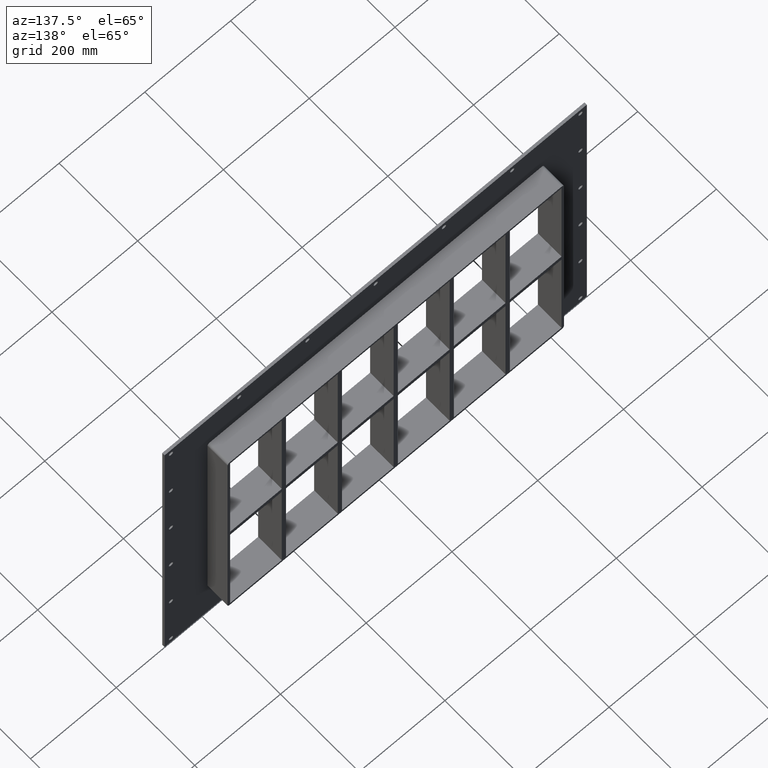
[diagram: clean part render]
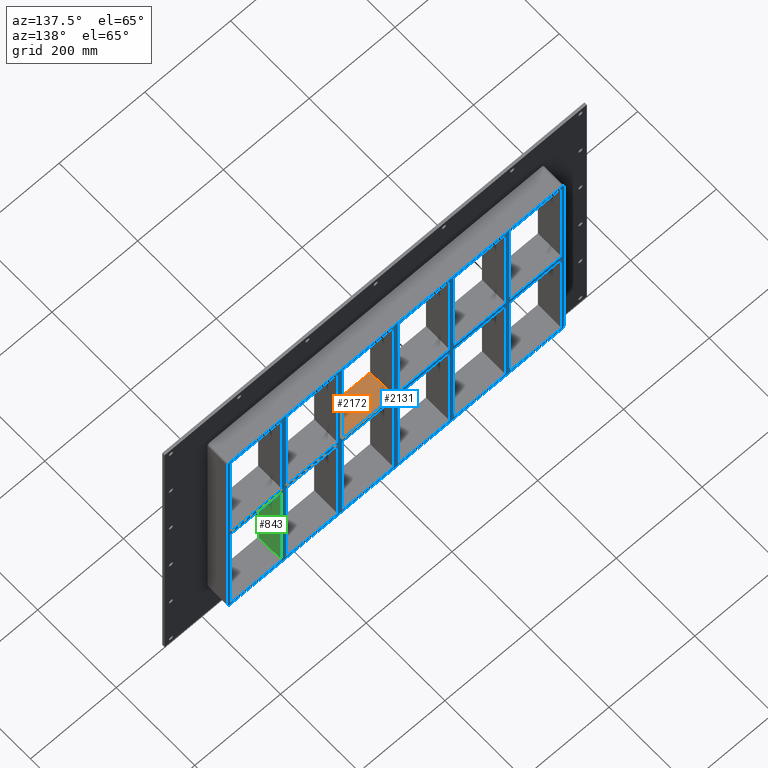
[diagram: same view with three faces highlighted in distinct colors, each labeled with its STEP entity id]
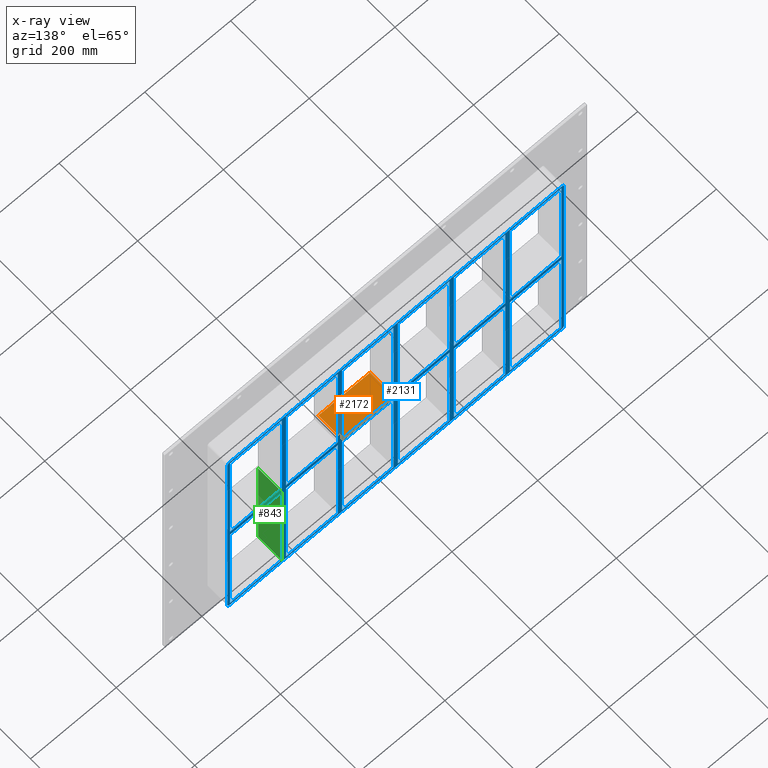
[diagram: x-ray of the same camera — body ghosted, the three highlighted faces saturated]
A machine part, auxiliary view with three faces highlighted in distinct colors.
The next image is the same camera in x-ray (body ghosted, the three faces saturated) — at least one of them is partly hidden behind the body in this view.
Their STEP definitions:

[orange] entity #2172 — the highlighted planar face has unit normal (0, 0, 1).
#849=CARTESIAN_POINT('',(125.49999999999866,-3.0,5.999999999999943));
#850=VERTEX_POINT('',#849);
#851=CARTESIAN_POINT('',(125.49999999999866,57.0,5.999999999999943));
#852=VERTEX_POINT('',#851);
#853=CARTESIAN_POINT('',(125.49999999999864,-3.0,5.999999999999943));
#854=DIRECTION('',(0.0,1.0,0.0));
#855=VECTOR('',#854,60.0);
#856=LINE('',#853,#855);
#857=EDGE_CURVE('',#850,#852,#856,.T.);
#1089=CARTESIAN_POINT('',(4.999999999996376,57.0,5.999999999999943));
#1090=VERTEX_POINT('',#1089);
#1091=CARTESIAN_POINT('',(4.999999999996376,-3.0,5.999999999999943));
#1092=VERTEX_POINT('',#1091);
#1093=CARTESIAN_POINT('',(4.999999999996376,57.0,5.999999999999943));
#1094=DIRECTION('',(0.0,-1.0,0.0));
#1095=VECTOR('',#1094,60.0);
#1096=LINE('',#1093,#1095);
#1097=EDGE_CURVE('',#1090,#1092,#1096,.T.);
#1565=CARTESIAN_POINT('',(4.999999999996362,-3.0,5.999999999999943));
#1566=DIRECTION('',(1.0,0.0,0.0));
#1567=VECTOR('',#1566,120.50000000000233);
#1568=LINE('',#1565,#1567);
#1569=EDGE_CURVE('',#1092,#850,#1568,.T.);
#1997=CARTESIAN_POINT('',(4.999999999996362,57.0,5.999999999999943));
#1998=DIRECTION('',(1.0,0.0,0.0));
#1999=VECTOR('',#1998,120.50000000000233);
#2000=LINE('',#1997,#1999);
#2001=EDGE_CURVE('',#1090,#852,#2000,.T.);
#2161=CARTESIAN_POINT('',(-386.49999999999977,-3.0,5.999999999999943));
#2162=DIRECTION('',(0.0,0.0,1.0));
#2163=DIRECTION('',(1.0,0.0,0.0));
#2164=AXIS2_PLACEMENT_3D('',#2161,#2162,#2163);
#2165=PLANE('',#2164);
#2166=ORIENTED_EDGE('',*,*,#857,.T.);
#2167=ORIENTED_EDGE('',*,*,#2001,.F.);
#2168=ORIENTED_EDGE('',*,*,#1097,.T.);
#2169=ORIENTED_EDGE('',*,*,#1569,.T.);
#2170=EDGE_LOOP('',(#2166,#2167,#2168,#2169));
#2171=FACE_OUTER_BOUND('',#2170,.T.);
#2172=ADVANCED_FACE('',(#2171),#2165,.T.);

[blue] entity #2131 — the highlighted planar face has unit normal (0, 1, 0).
#691=CARTESIAN_POINT('',(255.99999999999866,57.0,5.999999999999943));
#692=VERTEX_POINT('',#691);
#707=CARTESIAN_POINT('',(255.99999999999864,57.0,284.00000000000006));
#708=VERTEX_POINT('',#707);
#715=CARTESIAN_POINT('',(255.99999999999866,57.0,5.999999999999943));
#716=DIRECTION('',(0.0,0.0,1.0));
#717=VECTOR('',#716,278.00000000000011);
#718=LINE('',#715,#717);
#719=EDGE_CURVE('',#692,#708,#718,.T.);
#729=CARTESIAN_POINT('',(255.99999999999866,57.0,-6.000000000009358));
#730=VERTEX_POINT('',#729);
#739=CARTESIAN_POINT('',(255.99999999999869,57.0,-284.00000000000006));
#740=VERTEX_POINT('',#739);
#741=CARTESIAN_POINT('',(255.99999999999869,57.0,-284.00000000000006));
#742=DIRECTION('',(0.0,0.0,1.0));
#743=VECTOR('',#742,277.99999999999068);
#744=LINE('',#741,#743);
#745=EDGE_CURVE('',#740,#730,#744,.T.);
#769=CARTESIAN_POINT('',(265.99999999999642,57.0,5.999999999999943));
#770=VERTEX_POINT('',#769);
#779=CARTESIAN_POINT('',(265.99999999999642,57.0,284.00000000000006));
#780=VERTEX_POINT('',#779);
#781=CARTESIAN_POINT('',(265.99999999999642,57.0,284.00000000000006));
#782=DIRECTION('',(0.0,0.0,-1.0));
#783=VECTOR('',#782,278.00000000000011);
#784=LINE('',#781,#783);
#785=EDGE_CURVE('',#780,#770,#784,.T.);
#811=CARTESIAN_POINT('',(265.99999999999642,57.0,-6.000000000009358));
#812=VERTEX_POINT('',#811);
#827=CARTESIAN_POINT('',(265.99999999999642,57.0,-283.99999999998431));
#828=VERTEX_POINT('',#827);
#835=CARTESIAN_POINT('',(265.99999999999642,57.0,-6.000000000009379));
#836=DIRECTION('',(0.0,0.0,-1.0));
#837=VECTOR('',#836,277.99999999997488);
#838=LINE('',#835,#837);
#839=EDGE_CURVE('',#812,#828,#838,.T.);
#851=CARTESIAN_POINT('',(125.49999999999866,57.0,5.999999999999943));
#852=VERTEX_POINT('',#851);
#867=CARTESIAN_POINT('',(125.49999999999862,57.0,284.00000000000006));
#868=VERTEX_POINT('',#867);
#875=CARTESIAN_POINT('',(125.49999999999865,57.0,5.999999999999943));
#876=DIRECTION('',(0.0,0.0,1.0));
#877=VECTOR('',#876,278.00000000000011);
#878=LINE('',#875,#877);
#879=EDGE_CURVE('',#852,#868,#878,.T.);
#889=CARTESIAN_POINT('',(125.49999999999866,57.0,-6.000000000009429));
#890=VERTEX_POINT('',#889);
#899=CARTESIAN_POINT('',(125.49999999999869,57.0,-284.00000000000006));
#900=VERTEX_POINT('',#899);
#901=CARTESIAN_POINT('',(125.49999999999869,57.0,-284.00000000000006));
#902=DIRECTION('',(0.0,0.0,1.0));
#903=VECTOR('',#902,277.99999999999062);
#904=LINE('',#901,#903);
#905=EDGE_CURVE('',#900,#890,#904,.T.);
#929=CARTESIAN_POINT('',(135.49999999999642,57.0,5.999999999999943));
#930=VERTEX_POINT('',#929);
#939=CARTESIAN_POINT('',(135.49999999999642,57.0,284.00000000000006));
#940=VERTEX_POINT('',#939);
#941=CARTESIAN_POINT('',(135.49999999999642,57.0,284.00000000000006));
#942=DIRECTION('',(0.0,0.0,-1.0));
#943=VECTOR('',#942,278.00000000000011);
#944=LINE('',#941,#943);
#945=EDGE_CURVE('',#940,#930,#944,.T.);
#971=CARTESIAN_POINT('',(135.49999999999642,57.0,-6.000000000009429));
#972=VERTEX_POINT('',#971);
#987=CARTESIAN_POINT('',(135.49999999999642,57.0,-283.99999999998431));
#988=VERTEX_POINT('',#987);
#995=CARTESIAN_POINT('',(135.49999999999642,57.0,-6.000000000009436));
#996=DIRECTION('',(0.0,0.0,-1.0));
#997=VECTOR('',#996,277.99999999997482);
#998=LINE('',#995,#997);
#999=EDGE_CURVE('',#972,#988,#998,.T.);
#1011=CARTESIAN_POINT('',(-5.000000000001386,57.0,5.999999999999943));
#1012=VERTEX_POINT('',#1011);
#1027=CARTESIAN_POINT('',(-5.000000000001421,57.0,284.00000000000006));
#1028=VERTEX_POINT('',#1027);
#1035=CARTESIAN_POINT('',(-5.000000000001386,57.0,5.999999999999943));
#1036=DIRECTION('',(0.0,0.0,1.0));
#1037=VECTOR('',#1036,278.00000000000011);
#1038=LINE('',#1035,#1037);
#1039=EDGE_CURVE('',#1012,#1028,#1038,.T.);
#1049=CARTESIAN_POINT('',(-5.000000000001385,57.0,-6.000000000009464));
#1050=VERTEX_POINT('',#1049);
#1059=CARTESIAN_POINT('',(-5.00000000000135,57.0,-284.00000000000006));
#1060=VERTEX_POINT('',#1059);
#1061=CARTESIAN_POINT('',(-5.00000000000135,57.0,-284.00000000000006));
#1062=DIRECTION('',(0.0,0.0,1.0));
#1063=VECTOR('',#1062,277.99999999999056);
#1064=LINE('',#1061,#1063);
#1065=EDGE_CURVE('',#1060,#1050,#1064,.T.);
#1089=CARTESIAN_POINT('',(4.999999999996376,57.0,5.999999999999943));
#1090=VERTEX_POINT('',#1089);
#1099=CARTESIAN_POINT('',(4.999999999996376,57.0,284.00000000000006));
#1100=VERTEX_POINT('',#1099);
#1101=CARTESIAN_POINT('',(4.999999999996376,57.0,284.00000000000006));
#1102=DIRECTION('',(0.0,0.0,-1.0));
#1103=VECTOR('',#1102,278.00000000000011);
#1104=LINE('',#1101,#1103);
#1105=EDGE_CURVE('',#1100,#1090,#1104,.T.);
#1131=CARTESIAN_POINT('',(4.999999999996376,57.0,-6.000000000009464));
#1132=VERTEX_POINT('',#1131);
#1147=CARTESIAN_POINT('',(4.999999999996376,57.0,-283.99999999998431));
#1148=VERTEX_POINT('',#1147);
#1155=CARTESIAN_POINT('',(4.999999999996376,57.0,-6.000000000009493));
#1156=DIRECTION('',(0.0,0.0,-1.0));
#1157=VECTOR('',#1156,277.99999999997476);
#1158=LINE('',#1155,#1157);
#1159=EDGE_CURVE('',#1132,#1148,#1158,.T.);
#1171=CARTESIAN_POINT('',(-135.50000000000139,57.0,5.999999999999943));
#1172=VERTEX_POINT('',#1171);
#1187=CARTESIAN_POINT('',(-135.50000000000142,57.0,284.00000000000006));
#1188=VERTEX_POINT('',#1187);
#1195=CARTESIAN_POINT('',(-135.50000000000139,57.0,5.999999999999943));
#1196=DIRECTION('',(0.0,0.0,1.0));
#1197=VECTOR('',#1196,278.00000000000011);
#1198=LINE('',#1195,#1197);
#1199=EDGE_CURVE('',#1172,#1188,#1198,.T.);
#1209=CARTESIAN_POINT('',(-135.50000000000139,57.0,-6.0000000000095));
#1210=VERTEX_POINT('',#1209);
#1219=CARTESIAN_POINT('',(-135.50000000000136,57.0,-284.00000000000006));
#1220=VERTEX_POINT('',#1219);
#1221=CARTESIAN_POINT('',(-135.50000000000136,57.0,-284.00000000000006));
#1222=DIRECTION('',(0.0,0.0,1.0));
#1223=VECTOR('',#1222,277.99999999999056);
#1224=LINE('',#1221,#1223);
#1225=EDGE_CURVE('',#1220,#1210,#1224,.T.);
#1249=CARTESIAN_POINT('',(-125.50000000000364,57.0,5.999999999999943));
#1250=VERTEX_POINT('',#1249);
#1259=CARTESIAN_POINT('',(-125.50000000000364,57.0,284.00000000000006));
#1260=VERTEX_POINT('',#1259);
#1261=CARTESIAN_POINT('',(-125.50000000000364,57.0,284.00000000000006));
#1262=DIRECTION('',(0.0,0.0,-1.0));
#1263=VECTOR('',#1262,278.00000000000011);
#1264=LINE('',#1261,#1263);
#1265=EDGE_CURVE('',#1260,#1250,#1264,.T.);
#1291=CARTESIAN_POINT('',(-125.50000000000364,57.0,-6.0000000000095));
#1292=VERTEX_POINT('',#1291);
#1307=CARTESIAN_POINT('',(-125.50000000000364,57.0,-283.99999999998431));
#1308=VERTEX_POINT('',#1307);
#1315=CARTESIAN_POINT('',(-125.50000000000364,57.0,-6.000000000009493));
#1316=DIRECTION('',(0.0,0.0,-1.0));
#1317=VECTOR('',#1316,277.99999999997476);
#1318=LINE('',#1315,#1317);
#1319=EDGE_CURVE('',#1292,#1308,#1318,.T.);
#1330=CARTESIAN_POINT('',(-256.00000000000364,57.0,-283.99999999998431));
#1331=VERTEX_POINT('',#1330);
#1332=CARTESIAN_POINT('',(-256.00000000000358,57.0,-284.00000000000006));
#1333=DIRECTION('',(1.0,0.0,0.0));
#1334=VECTOR('',#1333,120.50000000000222);
#1335=LINE('',#1332,#1334);
#1336=EDGE_CURVE('',#1331,#1220,#1335,.T.);
#1361=CARTESIAN_POINT('',(-125.50000000000364,57.0,-284.00000000000006));
#1362=DIRECTION('',(1.0,0.0,0.0));
#1363=VECTOR('',#1362,120.50000000000227);
#1364=LINE('',#1361,#1363);
#1365=EDGE_CURVE('',#1308,#1060,#1364,.T.);
#1383=CARTESIAN_POINT('',(4.999999999996362,57.0,-284.00000000000006));
#1384=DIRECTION('',(1.0,0.0,0.0));
#1385=VECTOR('',#1384,120.50000000000233);
#1386=LINE('',#1383,#1385);
#1387=EDGE_CURVE('',#1148,#900,#1386,.T.);
#1405=CARTESIAN_POINT('',(135.49999999999642,57.0,-284.00000000000006));
#1406=DIRECTION('',(1.0,0.0,0.0));
#1407=VECTOR('',#1406,120.50000000000227);
#1408=LINE('',#1405,#1407);
#1409=EDGE_CURVE('',#988,#740,#1408,.T.);
#1435=CARTESIAN_POINT('',(386.50000000000023,57.0,-284.00000000000006));
#1436=VERTEX_POINT('',#1435);
#1443=CARTESIAN_POINT('',(265.99999999999642,57.0,-284.00000000000006));
#1444=DIRECTION('',(1.0,0.0,0.0));
#1445=VECTOR('',#1444,120.50000000000381);
#1446=LINE('',#1443,#1445);
#1447=EDGE_CURVE('',#828,#1436,#1446,.T.);
#1769=CARTESIAN_POINT('',(386.49999999999636,57.0,-6.000000000009322));
#1770=VERTEX_POINT('',#1769);
#1771=CARTESIAN_POINT('',(386.49999999999636,57.0,-6.000000000009322));
#1772=DIRECTION('',(-1.0,0.0,0.0));
#1773=VECTOR('',#1772,120.49999999999994);
#1774=LINE('',#1771,#1773);
#1775=EDGE_CURVE('',#1770,#812,#1774,.T.);
#1794=CARTESIAN_POINT('',(-256.00000000000364,57.0,-6.000000000009559));
#1795=VERTEX_POINT('',#1794);
#1802=CARTESIAN_POINT('',(-135.50000000000136,57.0,-6.000000000009514));
#1803=DIRECTION('',(-1.0,0.0,0.0));
#1804=VECTOR('',#1803,120.50000000000227);
#1805=LINE('',#1802,#1804);
#1806=EDGE_CURVE('',#1210,#1795,#1805,.T.);
#1819=CARTESIAN_POINT('',(-5.000000000001364,57.0,-6.000000000009466));
#1820=DIRECTION('',(-1.0,0.0,0.0));
#1821=VECTOR('',#1820,120.50000000000227);
#1822=LINE('',#1819,#1821);
#1823=EDGE_CURVE('',#1050,#1292,#1822,.T.);
#1836=CARTESIAN_POINT('',(125.49999999999864,57.0,-6.000000000009418));
#1837=DIRECTION('',(-1.0,0.0,0.0));
#1838=VECTOR('',#1837,120.50000000000227);
#1839=LINE('',#1836,#1838);
#1840=EDGE_CURVE('',#890,#1132,#1839,.T.);
#1845=CARTESIAN_POINT('',(-5.791053E-014,57.0,0.0));
#1846=DIRECTION('',(0.0,1.0,0.0));
#1847=DIRECTION('',(0.0,0.0,1.0));
#1848=AXIS2_PLACEMENT_3D('',#1845,#1846,#1847);
#1849=PLANE('',#1848);
#1850=CARTESIAN_POINT('',(386.50000000000006,57.0,-290.00000000000006));
#1851=VERTEX_POINT('',#1850);
#1852=CARTESIAN_POINT('',(392.5,57.0,-284.0));
#1853=VERTEX_POINT('',#1852);
#1854=CARTESIAN_POINT('',(386.50000000000006,57.0,-284.0));
#1855=DIRECTION('',(0.0,-1.0,0.0));
#1856=DIRECTION('',(0.707106781186543,0.0,-0.707106781186552));
#1857=AXIS2_PLACEMENT_3D('',#1854,#1855,#1856);
#1858=CIRCLE('',#1857,6.000000000000001);
#1859=EDGE_CURVE('',#1851,#1853,#1858,.T.);
#1860=ORIENTED_EDGE('',*,*,#1859,.F.);
#1861=CARTESIAN_POINT('',(-386.50000000000006,57.0,-290.00000000000006));
#1862=VERTEX_POINT('',#1861);
#1863=CARTESIAN_POINT('',(386.50000000000006,57.0,-290.00000000000006));
#1864=DIRECTION('',(-1.0,0.0,0.0));
#1865=VECTOR('',#1864,773.0);
#1866=LINE('',#1863,#1865);
#1867=EDGE_CURVE('',#1851,#1862,#1866,.T.);
#1868=ORIENTED_EDGE('',*,*,#1867,.T.);
#1869=CARTESIAN_POINT('',(-392.50000000000011,57.0,-284.0));
#1870=VERTEX_POINT('',#1869);
#1871=CARTESIAN_POINT('',(-386.50000000000006,57.0,-284.0));
#1872=DIRECTION('',(0.0,-1.0,0.0));
#1873=DIRECTION('',(-0.707106781186552,0.0,-0.707106781186543));
#1874=AXIS2_PLACEMENT_3D('',#1871,#1872,#1873);
#1875=CIRCLE('',#1874,6.0);
#1876=EDGE_CURVE('',#1870,#1862,#1875,.T.);
#1877=ORIENTED_EDGE('',*,*,#1876,.F.);
#1878=CARTESIAN_POINT('',(-392.50000000000011,57.0,284.0));
#1879=VERTEX_POINT('',#1878);
#1880=CARTESIAN_POINT('',(-392.50000000000011,57.0,-284.00000000000006));
#1881=DIRECTION('',(0.0,0.0,1.0));
#1882=VECTOR('',#1881,568.0);
#1883=LINE('',#1880,#1882);
#1884=EDGE_CURVE('',#1870,#1879,#1883,.T.);
#1885=ORIENTED_EDGE('',*,*,#1884,.T.);
#1886=CARTESIAN_POINT('',(-386.50000000000023,57.0,290.00000000000006));
#1887=VERTEX_POINT('',#1886);
#1888=CARTESIAN_POINT('',(-386.50000000000023,57.0,284.0));
#1889=DIRECTION('',(0.0,-1.0,0.0));
#1890=DIRECTION('',(-0.707106781186543,0.0,0.707106781186552));
#1891=AXIS2_PLACEMENT_3D('',#1888,#1889,#1890);
#1892=CIRCLE('',#1891,6.000000000000001);
#1893=EDGE_CURVE('',#1887,#1879,#1892,.T.);
#1894=ORIENTED_EDGE('',*,*,#1893,.F.);
#1895=CARTESIAN_POINT('',(386.49999999999989,57.0,290.00000000000006));
#1896=VERTEX_POINT('',#1895);
#1897=CARTESIAN_POINT('',(-386.50000000000017,57.0,290.00000000000006));
#1898=DIRECTION('',(1.0,0.0,0.0));
#1899=VECTOR('',#1898,773.0);
#1900=LINE('',#1897,#1899);
#1901=EDGE_CURVE('',#1887,#1896,#1900,.T.);
#1902=ORIENTED_EDGE('',*,*,#1901,.T.);
#1903=CARTESIAN_POINT('',(392.5,57.0,284.0));
#1904=VERTEX_POINT('',#1903);
#1905=CARTESIAN_POINT('',(386.49999999999989,57.0,284.0));
#1906=DIRECTION('',(0.0,-1.0,0.0));
#1907=DIRECTION('',(0.707106781186552,0.0,0.707106781186543));
#1908=AXIS2_PLACEMENT_3D('',#1905,#1906,#1907);
#1909=CIRCLE('',#1908,6.0);
#1910=EDGE_CURVE('',#1904,#1896,#1909,.T.);
#1911=ORIENTED_EDGE('',*,*,#1910,.F.);
#1912=CARTESIAN_POINT('',(392.5,57.0,284.00000000000006));
#1913=DIRECTION('',(0.0,0.0,-1.0));
#1914=VECTOR('',#1913,568.0);
#1915=LINE('',#1912,#1914);
#1916=EDGE_CURVE('',#1904,#1853,#1915,.T.);
#1917=ORIENTED_EDGE('',*,*,#1916,.T.);
#1918=EDGE_LOOP('',(#1860,#1868,#1877,#1885,#1894,#1902,#1911,#1917));
#1919=FACE_OUTER_BOUND('',#1918,.T.);
#1920=ORIENTED_EDGE('',*,*,#1447,.T.);
#1921=CARTESIAN_POINT('',(386.50000000000023,57.0,-284.00000000000011));
#1922=DIRECTION('',(0.0,0.0,1.0));
#1923=VECTOR('',#1922,277.99999999999079);
#1924=LINE('',#1921,#1923);
#1925=EDGE_CURVE('',#1436,#1770,#1924,.T.);
#1926=ORIENTED_EDGE('',*,*,#1925,.T.);
#1927=ORIENTED_EDGE('',*,*,#1775,.T.);
#1928=ORIENTED_EDGE('',*,*,#839,.T.);
#1929=EDGE_LOOP('',(#1920,#1926,#1927,#1928));
#1930=FACE_BOUND('',#1929,.T.);
#1931=CARTESIAN_POINT('',(386.50000000000006,57.0,5.999999999999943));
#1932=VERTEX_POINT('',#1931);
#1933=CARTESIAN_POINT('',(265.99999999999636,57.0,5.999999999999943));
#1934=DIRECTION('',(1.0,0.0,0.0));
#1935=VECTOR('',#1934,120.50000000000364);
#1936=LINE('',#1933,#1935);
#1937=EDGE_CURVE('',#770,#1932,#1936,.T.);
#1938=ORIENTED_EDGE('',*,*,#1937,.T.);
#1939=CARTESIAN_POINT('',(386.50000000000023,57.0,284.00000000000006));
#1940=VERTEX_POINT('',#1939);
#1941=CARTESIAN_POINT('',(386.50000000000023,57.0,5.999999999999943));
#1942=DIRECTION('',(0.0,0.0,1.0));
#1943=VECTOR('',#1942,278.00000000000011);
#1944=LINE('',#1941,#1943);
#1945=EDGE_CURVE('',#1932,#1940,#1944,.T.);
#1946=ORIENTED_EDGE('',*,*,#1945,.T.);
#1947=CARTESIAN_POINT('',(386.50000000000017,57.0,284.0));
#1948=DIRECTION('',(-1.0,0.0,0.0));
#1949=VECTOR('',#1948,120.50000000000375);
#1950=LINE('',#1947,#1949);
#1951=EDGE_CURVE('',#1940,#780,#1950,.T.);
#1952=ORIENTED_EDGE('',*,*,#1951,.T.);
#1953=ORIENTED_EDGE('',*,*,#785,.T.);
#1954=EDGE_LOOP('',(#1938,#1946,#1952,#1953));
#1955=FACE_BOUND('',#1954,.T.);
#1956=ORIENTED_EDGE('',*,*,#745,.T.);
#1957=CARTESIAN_POINT('',(255.99999999999866,57.0,-6.00000000000937));
#1958=DIRECTION('',(-1.0,0.0,0.0));
#1959=VECTOR('',#1958,120.50000000000225);
#1960=LINE('',#1957,#1959);
#1961=EDGE_CURVE('',#730,#972,#1960,.T.);
#1962=ORIENTED_EDGE('',*,*,#1961,.T.);
#1963=ORIENTED_EDGE('',*,*,#999,.T.);
#1964=ORIENTED_EDGE('',*,*,#1409,.T.);
#1965=EDGE_LOOP('',(#1956,#1962,#1963,#1964));
#1966=FACE_BOUND('',#1965,.T.);
#1967=ORIENTED_EDGE('',*,*,#719,.T.);
#1968=CARTESIAN_POINT('',(255.99999999999864,57.0,284.0));
#1969=DIRECTION('',(-1.0,0.0,0.0));
#1970=VECTOR('',#1969,120.50000000000222);
#1971=LINE('',#1968,#1970);
#1972=EDGE_CURVE('',#708,#940,#1971,.T.);
#1973=ORIENTED_EDGE('',*,*,#1972,.T.);
#1974=ORIENTED_EDGE('',*,*,#945,.T.);
#1975=CARTESIAN_POINT('',(135.49999999999636,57.0,5.999999999999943));
#1976=DIRECTION('',(1.0,0.0,0.0));
#1977=VECTOR('',#1976,120.50000000000227);
#1978=LINE('',#1975,#1977);
#1979=EDGE_CURVE('',#930,#692,#1978,.T.);
#1980=ORIENTED_EDGE('',*,*,#1979,.T.);
#1981=EDGE_LOOP('',(#1967,#1973,#1974,#1980));
#1982=FACE_BOUND('',#1981,.T.);
#1983=ORIENTED_EDGE('',*,*,#905,.T.);
#1984=ORIENTED_EDGE('',*,*,#1840,.T.);
#1985=ORIENTED_EDGE('',*,*,#1159,.T.);
#1986=ORIENTED_EDGE('',*,*,#1387,.T.);
#1987=EDGE_LOOP('',(#1983,#1984,#1985,#1986));
#1988=FACE_BOUND('',#1987,.T.);
#1989=ORIENTED_EDGE('',*,*,#879,.T.);
#1990=CARTESIAN_POINT('',(125.49999999999864,57.0,284.0));
#1991=DIRECTION('',(-1.0,0.0,0.0));
#1992=VECTOR('',#1991,120.50000000000225);
#1993=LINE('',#1990,#1992);
#1994=EDGE_CURVE('',#868,#1100,#1993,.T.);
#1995=ORIENTED_EDGE('',*,*,#1994,.T.);
#1996=ORIENTED_EDGE('',*,*,#1105,.T.);
#1997=CARTESIAN_POINT('',(4.999999999996362,57.0,5.999999999999943));
#1998=DIRECTION('',(1.0,0.0,0.0));
#1999=VECTOR('',#1998,120.50000000000233);
#2000=LINE('',#1997,#1999);
#2001=EDGE_CURVE('',#1090,#852,#2000,.T.);
#2002=ORIENTED_EDGE('',*,*,#2001,.T.);
#2003=EDGE_LOOP('',(#1989,#1995,#1996,#2002));
#2004=FACE_BOUND('',#2003,.T.);
#2005=ORIENTED_EDGE('',*,*,#1065,.T.);
#2006=ORIENTED_EDGE('',*,*,#1823,.T.);
#2007=ORIENTED_EDGE('',*,*,#1319,.T.);
#2008=ORIENTED_EDGE('',*,*,#1365,.T.);
#2009=EDGE_LOOP('',(#2005,#2006,#2007,#2008));
#2010=FACE_BOUND('',#2009,.T.);
#2011=ORIENTED_EDGE('',*,*,#1039,.T.);
#2012=CARTESIAN_POINT('',(-5.000000000001421,57.0,284.0));
#2013=DIRECTION('',(-1.0,0.0,0.0));
#2014=VECTOR('',#2013,120.5000000000022);
#2015=LINE('',#2012,#2014);
#2016=EDGE_CURVE('',#1028,#1260,#2015,.T.);
#2017=ORIENTED_EDGE('',*,*,#2016,.T.);
#2018=ORIENTED_EDGE('',*,*,#1265,.T.);
#2019=CARTESIAN_POINT('',(-125.50000000000364,57.0,5.999999999999943));
#2020=DIRECTION('',(1.0,0.0,0.0));
#2021=VECTOR('',#2020,120.50000000000222);
#2022=LINE('',#2019,#2021);
#2023=EDGE_CURVE('',#1250,#1012,#2022,.T.);
#2024=ORIENTED_EDGE('',*,*,#2023,.T.);
#2025=EDGE_LOOP('',(#2011,#2017,#2018,#2024));
#2026=FACE_BOUND('',#2025,.T.);
#2027=ORIENTED_EDGE('',*,*,#1225,.T.);
#2028=ORIENTED_EDGE('',*,*,#1806,.T.);
#2029=CARTESIAN_POINT('',(-256.00000000000364,57.0,-6.00000000000955));
#2030=DIRECTION('',(0.0,0.0,-1.0));
#2031=VECTOR('',#2030,277.9999999999747);
#2032=LINE('',#2029,#2031);
#2033=EDGE_CURVE('',#1795,#1331,#2032,.T.);
#2034=ORIENTED_EDGE('',*,*,#2033,.T.);
#2035=ORIENTED_EDGE('',*,*,#1336,.T.);
#2036=EDGE_LOOP('',(#2027,#2028,#2034,#2035));
#2037=FACE_BOUND('',#2036,.T.);
#2038=CARTESIAN_POINT('',(-386.49999999999977,57.0,5.999999999999943));
#2039=VERTEX_POINT('',#2038);
#2040=CARTESIAN_POINT('',(-266.00000000000142,57.0,5.999999999999943));
#2041=VERTEX_POINT('',#2040);
#2042=CARTESIAN_POINT('',(-386.49999999999977,57.0,5.999999999999943));
#2043=DIRECTION('',(1.0,0.0,0.0));
#2044=VECTOR('',#2043,120.49999999999841);
#2045=LINE('',#2042,#2044);
#2046=EDGE_CURVE('',#2039,#2041,#2045,.T.);
#2047=ORIENTED_EDGE('',*,*,#2046,.T.);
#2048=CARTESIAN_POINT('',(-266.00000000000142,57.0,284.00000000000006));
#2049=VERTEX_POINT('',#2048);
#2050=CARTESIAN_POINT('',(-266.00000000000142,57.0,5.999999999999943));
#2051=DIRECTION('',(0.0,0.0,1.0));
#2052=VECTOR('',#2051,278.00000000000011);
#2053=LINE('',#2050,#2052);
#2054=EDGE_CURVE('',#2041,#2049,#2053,.T.);
#2055=ORIENTED_EDGE('',*,*,#2054,.T.);
#2056=CARTESIAN_POINT('',(-386.50000000000006,57.0,284.00000000000006));
#2057=VERTEX_POINT('',#2056);
#2058=CARTESIAN_POINT('',(-266.00000000000142,57.0,284.0));
#2059=DIRECTION('',(-1.0,0.0,0.0));
#2060=VECTOR('',#2059,120.49999999999864);
#2061=LINE('',#2058,#2060);
#2062=EDGE_CURVE('',#2049,#2057,#2061,.T.);
#2063=ORIENTED_EDGE('',*,*,#2062,.T.);
#2064=CARTESIAN_POINT('',(-386.50000000000006,57.0,284.00000000000011));
#2065=DIRECTION('',(0.0,0.0,-1.0));
#2066=VECTOR('',#2065,278.00000000000017);
#2067=LINE('',#2064,#2066);
#2068=EDGE_CURVE('',#2057,#2039,#2067,.T.);
#2069=ORIENTED_EDGE('',*,*,#2068,.T.);
#2070=EDGE_LOOP('',(#2047,#2055,#2063,#2069));
#2071=FACE_BOUND('',#2070,.T.);
#2072=CARTESIAN_POINT('',(-386.49999999999977,57.0,-6.000000000009607));
#2073=VERTEX_POINT('',#2072);
#2074=CARTESIAN_POINT('',(-386.50000000000006,57.0,-284.00000000000006));
#2075=VERTEX_POINT('',#2074);
#2076=CARTESIAN_POINT('',(-386.50000000000006,57.0,-6.000000000009607));
#2077=DIRECTION('',(0.0,0.0,-1.0));
#2078=VECTOR('',#2077,277.99999999999045);
#2079=LINE('',#2076,#2078);
#2080=EDGE_CURVE('',#2073,#2075,#2079,.T.);
#2081=ORIENTED_EDGE('',*,*,#2080,.T.);
#2082=CARTESIAN_POINT('',(-266.00000000000136,57.0,-284.00000000000006));
#2083=VERTEX_POINT('',#2082);
#2084=CARTESIAN_POINT('',(-386.50000000000006,57.0,-284.00000000000006));
#2085=DIRECTION('',(1.0,0.0,0.0));
#2086=VECTOR('',#2085,120.49999999999875);
#2087=LINE('',#2084,#2086);
#2088=EDGE_CURVE('',#2075,#2083,#2087,.T.);
#2089=ORIENTED_EDGE('',*,*,#2088,.T.);
#2090=CARTESIAN_POINT('',(-266.00000000000136,57.0,-6.000000000009562));
#2091=VERTEX_POINT('',#2090);
#2092=CARTESIAN_POINT('',(-266.00000000000136,57.0,-284.00000000000006));
#2093=DIRECTION('',(0.0,0.0,1.0));
#2094=VECTOR('',#2093,277.99999999999051);
#2095=LINE('',#2092,#2094);
#2096=EDGE_CURVE('',#2083,#2091,#2095,.T.);
#2097=ORIENTED_EDGE('',*,*,#2096,.T.);
#2098=CARTESIAN_POINT('',(-266.00000000000136,57.0,-6.000000000009562));
#2099=DIRECTION('',(-1.0,0.0,0.0));
#2100=VECTOR('',#2099,120.49999999999841);
#2101=LINE('',#2098,#2100);
#2102=EDGE_CURVE('',#2091,#2073,#2101,.T.);
#2103=ORIENTED_EDGE('',*,*,#2102,.T.);
#2104=EDGE_LOOP('',(#2081,#2089,#2097,#2103));
#2105=FACE_BOUND('',#2104,.T.);
#2106=ORIENTED_EDGE('',*,*,#1199,.T.);
#2107=CARTESIAN_POINT('',(-256.00000000000364,57.0,284.00000000000006));
#2108=VERTEX_POINT('',#2107);
#2109=CARTESIAN_POINT('',(-135.50000000000142,57.0,284.0));
#2110=DIRECTION('',(-1.0,0.0,0.0));
#2111=VECTOR('',#2110,120.50000000000222);
#2112=LINE('',#2109,#2111);
#2113=EDGE_CURVE('',#1188,#2108,#2112,.T.);
#2114=ORIENTED_EDGE('',*,*,#2113,.T.);
#2115=CARTESIAN_POINT('',(-256.00000000000364,57.0,5.999999999999943));
#2116=VERTEX_POINT('',#2115);
#2117=CARTESIAN_POINT('',(-256.00000000000364,57.0,284.00000000000006));
#2118=DIRECTION('',(0.0,0.0,-1.0));
#2119=VECTOR('',#2118,278.00000000000011);
#2120=LINE('',#2117,#2119);
#2121=EDGE_CURVE('',#2108,#2116,#2120,.T.);
#2122=ORIENTED_EDGE('',*,*,#2121,.T.);
#2123=CARTESIAN_POINT('',(-256.00000000000364,57.0,5.999999999999943));
#2124=DIRECTION('',(1.0,0.0,0.0));
#2125=VECTOR('',#2124,120.50000000000225);
#2126=LINE('',#2123,#2125);
#2127=EDGE_CURVE('',#2116,#1172,#2126,.T.);
#2128=ORIENTED_EDGE('',*,*,#2127,.T.);
#2129=EDGE_LOOP('',(#2106,#2114,#2122,#2128));
#2130=FACE_BOUND('',#2129,.T.);
#2131=ADVANCED_FACE('',(#1919,#1930,#1955,#1966,#1982,#1988,#2004,#2010,#2026,#2037,#2071,#2105,#2130),#1849,.T.);

[green] entity #843 — the highlighted planar face has unit normal (1, 0, 0).
#804=CARTESIAN_POINT('',(265.99999999999642,-3.0,284.00000000000006));
#805=DIRECTION('',(1.0,0.0,0.0));
#806=DIRECTION('',(0.0,0.0,-1.0));
#807=AXIS2_PLACEMENT_3D('',#804,#805,#806);
#808=PLANE('',#807);
#809=CARTESIAN_POINT('',(265.99999999999642,-3.0,-6.000000000009358));
#810=VERTEX_POINT('',#809);
#811=CARTESIAN_POINT('',(265.99999999999642,57.0,-6.000000000009358));
#812=VERTEX_POINT('',#811);
#813=CARTESIAN_POINT('',(265.99999999999636,-3.0,-6.000000000009358));
#814=DIRECTION('',(0.0,1.0,0.0));
#815=VECTOR('',#814,60.0);
#816=LINE('',#813,#815);
#817=EDGE_CURVE('',#810,#812,#816,.T.);
#818=ORIENTED_EDGE('',*,*,#817,.F.);
#819=CARTESIAN_POINT('',(265.99999999999642,-3.0,-283.99999999998431));
#820=VERTEX_POINT('',#819);
#821=CARTESIAN_POINT('',(265.99999999999642,-3.0,-6.000000000009379));
#822=DIRECTION('',(0.0,0.0,-1.0));
#823=VECTOR('',#822,277.99999999997488);
#824=LINE('',#821,#823);
#825=EDGE_CURVE('',#810,#820,#824,.T.);
#826=ORIENTED_EDGE('',*,*,#825,.T.);
#827=CARTESIAN_POINT('',(265.99999999999642,57.0,-283.99999999998431));
#828=VERTEX_POINT('',#827);
#829=CARTESIAN_POINT('',(265.99999999999636,57.000000000000007,-284.00000000000006));
#830=DIRECTION('',(0.0,-1.0,0.0));
#831=VECTOR('',#830,60.000000000000007);
#832=LINE('',#829,#831);
#833=EDGE_CURVE('',#828,#820,#832,.T.);
#834=ORIENTED_EDGE('',*,*,#833,.F.);
#835=CARTESIAN_POINT('',(265.99999999999642,57.0,-6.000000000009379));
#836=DIRECTION('',(0.0,0.0,-1.0));
#837=VECTOR('',#836,277.99999999997488);
#838=LINE('',#835,#837);
#839=EDGE_CURVE('',#812,#828,#838,.T.);
#840=ORIENTED_EDGE('',*,*,#839,.F.);
#841=EDGE_LOOP('',(#818,#826,#834,#840));
#842=FACE_OUTER_BOUND('',#841,.T.);
#843=ADVANCED_FACE('',(#842),#808,.T.);